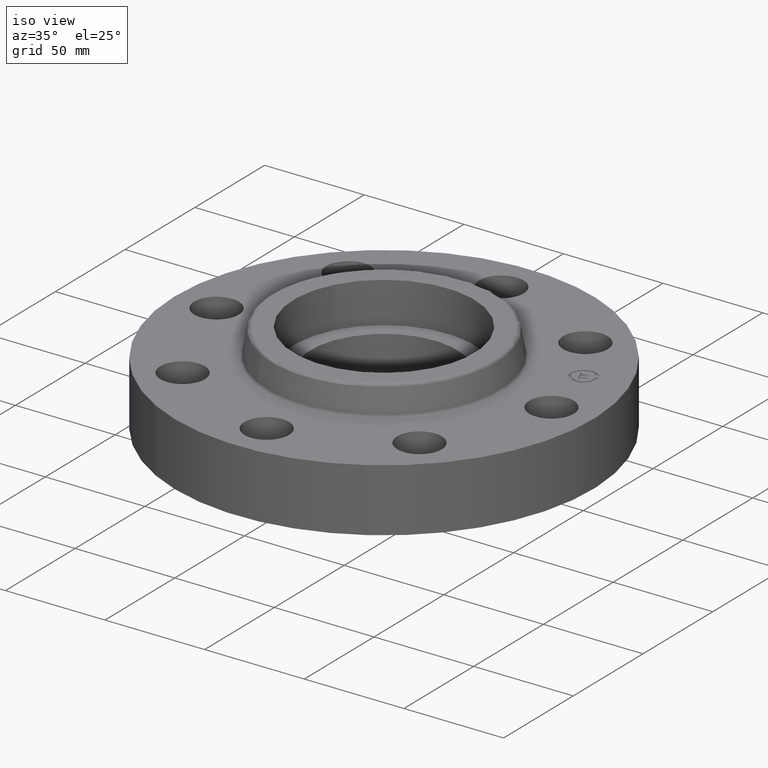
[diagram: clean part render]
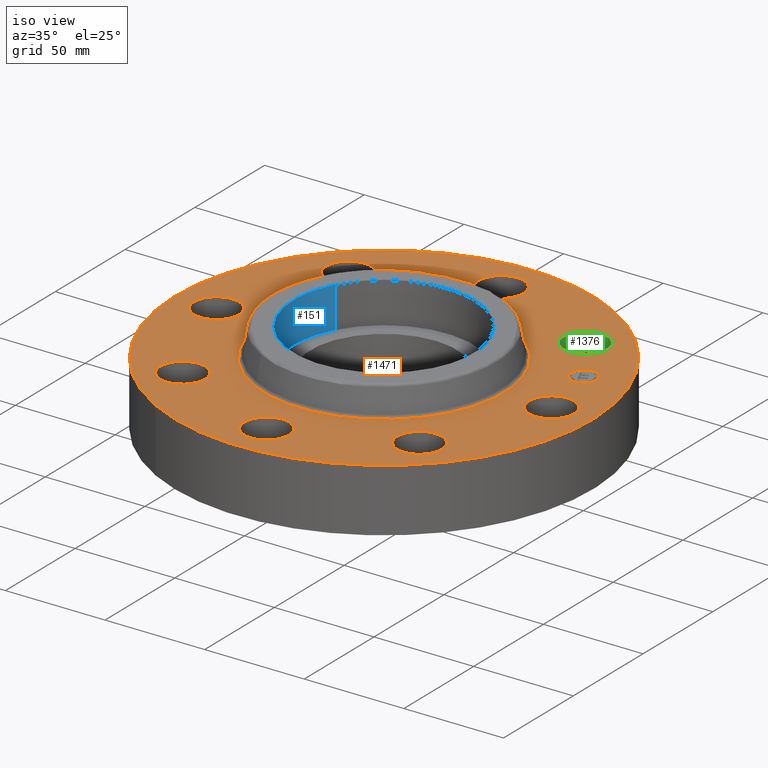
[diagram: same view with three faces highlighted in distinct colors, each labeled with its STEP entity id]
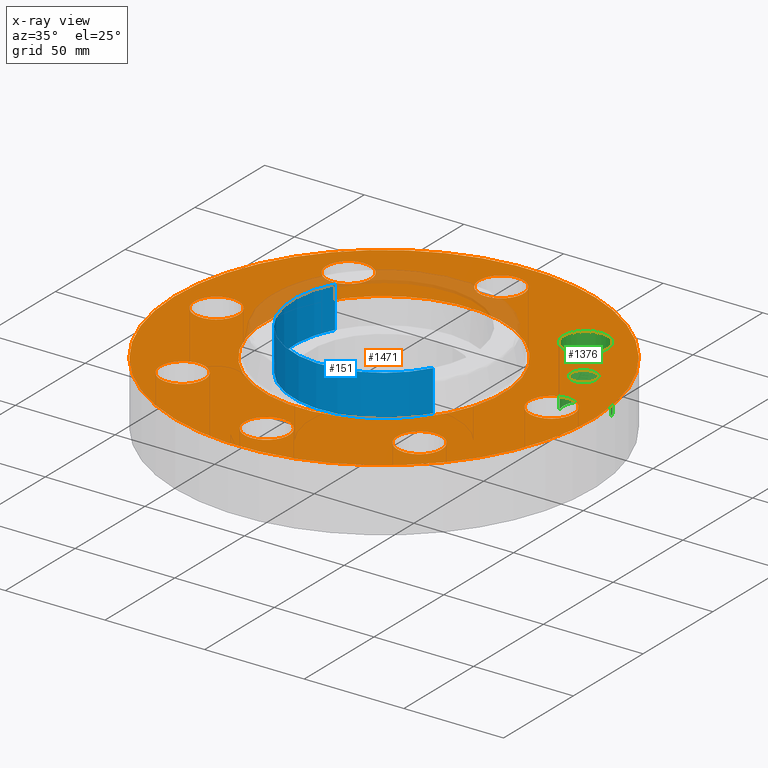
[diagram: x-ray of the same camera — body ghosted, the three highlighted faces saturated]
A machine part, iso view with three faces highlighted in distinct colors.
The next image is the same camera in x-ray (body ghosted, the three faces saturated) — at least one of them is partly hidden behind the body in this view.
Their STEP definitions:

[orange] entity #1471 — the highlighted planar face has unit normal (0, 0, -1).
#687=AXIS2_PLACEMENT_3D('Circle Axis2P3D',#685,#686,$) ;
#725=AXIS2_PLACEMENT_3D('Circle Axis2P3D',#723,#724,$) ;
#799=AXIS2_PLACEMENT_3D('Circle Axis2P3D',#797,#798,$) ;
#873=AXIS2_PLACEMENT_3D('Circle Axis2P3D',#871,#872,$) ;
#947=AXIS2_PLACEMENT_3D('Circle Axis2P3D',#945,#946,$) ;
#985=AXIS2_PLACEMENT_3D('Circle Axis2P3D',#983,#984,$) ;
#1095=AXIS2_PLACEMENT_3D('Circle Axis2P3D',#1093,#1094,$) ;
#1133=AXIS2_PLACEMENT_3D('Circle Axis2P3D',#1131,#1132,$) ;
#1243=AXIS2_PLACEMENT_3D('Circle Axis2P3D',#1241,#1242,$) ;
#1281=AXIS2_PLACEMENT_3D('Circle Axis2P3D',#1279,#1280,$) ;
#1391=AXIS2_PLACEMENT_3D('Circle Axis2P3D',#1389,#1390,$) ;
#1411=AXIS2_PLACEMENT_3D('Plane Axis2P3D',#1408,#1409,#1410) ;
#1455=AXIS2_PLACEMENT_3D('Circle Axis2P3D',#1453,#1454,$) ;
#1464=AXIS2_PLACEMENT_3D('Circle Axis2P3D',#1462,#1463,$) ;
#685=CARTESIAN_POINT('Axis2P3D Location',(0.,0.,1.25000000001)) ;
#689=CARTESIAN_POINT('Vertex',(1.13161014174,2.07139847022,1.25000000001)) ;
#691=CARTESIAN_POINT('Vertex',(-1.13161014174,-2.07139847022,1.25000000001)) ;
#723=CARTESIAN_POINT('Axis2P3D Location',(0.,0.,1.25000000001)) ;
#751=CARTESIAN_POINT('Vertex',(-1.97763034675,-3.62002806781,1.25000000004)) ;
#755=CARTESIAN_POINT('Control Point',(-1.97763034675,-3.62002806781,1.25000000001)) ;
#756=CARTESIAN_POINT('Control Point',(-2.54626302594,-3.30938261937,1.25000000001)) ;
#757=CARTESIAN_POINT('Control Point',(-3.05390061395,-2.88708640546,1.25000000001)) ;
#758=CARTESIAN_POINT('Control Point',(-3.47121412711,-2.36901864835,1.25000000001)) ;
#759=CARTESIAN_POINT('Control Point',(-4.08022127968,-1.19716953677,1.25000000002)) ;
#760=CARTESIAN_POINT('Control Point',(-4.20091220836,0.117955458021,1.25000000002)) ;
#761=CARTESIAN_POINT('Control Point',(-4.12966819923,0.779369897221,1.25000000002)) ;
#762=CARTESIAN_POINT('Control Point',(-3.73167883328,2.03862543792,1.25000000003)) ;
#763=CARTESIAN_POINT('Control Point',(-2.88708640546,3.05390061395,1.25000000003)) ;
#764=CARTESIAN_POINT('Control Point',(-2.36901864835,3.47121412711,1.25000000003)) ;
#765=CARTESIAN_POINT('Control Point',(-1.19716953677,4.08022127968,1.25000000003)) ;
#766=CARTESIAN_POINT('Control Point',(0.117955458021,4.20091220836,1.25000000004)) ;
#767=CARTESIAN_POINT('Control Point',(0.77936989722,4.12966819923,1.25000000004)) ;
#768=CARTESIAN_POINT('Control Point',(1.40899766757,3.93067351626,1.25000000004)) ;
#769=CARTESIAN_POINT('Control Point',(1.97763034675,3.62002806781,1.25000000004)) ;
#770=CARTESIAN_POINT('Vertex',(1.97763034678,3.62002806783,1.25000000001)) ;
#797=CARTESIAN_POINT('Axis2P3D Location',(0.,0.,1.25000000004)) ;
#825=CARTESIAN_POINT('Vertex',(3.69613632724,-0.210947236984,1.24999999999)) ;
#832=CARTESIAN_POINT('Vertex',(2.92386367278,0.210947236987,1.24999999999)) ;
#836=CARTESIAN_POINT('Control Point',(3.69613632724,-0.210947236987,1.24999999999)) ;
#837=CARTESIAN_POINT('Control Point',(3.66300081274,-0.271601389433,1.24999999999)) ;
#838=CARTESIAN_POINT('Control Point',(3.61795588326,-0.325749398821,1.24999999999)) ;
#839=CARTESIAN_POINT('Control Point',(3.5626953225,-0.370262840224,1.24999999999)) ;
#840=CARTESIAN_POINT('Control Point',(3.43769808393,-0.435223603166,1.24999999999)) ;
#841=CARTESIAN_POINT('Control Point',(3.29741808449,-0.448097302225,1.25)) ;
#842=CARTESIAN_POINT('Control Point',(3.22686721097,-0.440497941251,1.25)) ;
#843=CARTESIAN_POINT('Control Point',(3.09254661997,-0.398045742217,1.25)) ;
#844=CARTESIAN_POINT('Control Point',(2.98425060119,-0.307955883249,1.25)) ;
#845=CARTESIAN_POINT('Control Point',(2.93973715979,-0.252695322491,1.25)) ;
#846=CARTESIAN_POINT('Control Point',(2.87477639684,-0.127698083922,1.25)) ;
#847=CARTESIAN_POINT('Control Point',(2.86190269778,0.0125819155223,1.25000000001)) ;
#848=CARTESIAN_POINT('Control Point',(2.86950205876,0.0831327890369,1.25000000001)) ;
#849=CARTESIAN_POINT('Control Point',(2.89072815828,0.150293084541,1.25000000001)) ;
#850=CARTESIAN_POINT('Control Point',(2.92386367278,0.210947236987,1.25000000001)) ;
#871=CARTESIAN_POINT('Axis2P3D Location',(3.31000000001,0.,1.24999999999)) ;
#899=CARTESIAN_POINT('Vertex',(2.21664605203,-1.91832160855,1.24999999999)) ;
#906=CARTESIAN_POINT('Vertex',(2.46440083944,-2.76272528294,1.24999999999)) ;
#910=CARTESIAN_POINT('Control Point',(2.21664605204,-1.91832160854,1.24999999999)) ;
#911=CARTESIAN_POINT('Control Point',(2.28296536154,-1.89886299304,1.24999999999)) ;
#912=CARTESIAN_POINT('Control Point',(2.35310536126,-1.89242614351,1.24999999999)) ;
#913=CARTESIAN_POINT('Control Point',(2.42365623478,-1.90002550449,1.24999999999)) ;
#914=CARTESIAN_POINT('Control Point',(2.55797682578,-1.94247770352,1.24999999999)) ;
#915=CARTESIAN_POINT('Control Point',(2.66627284456,-2.03256756249,1.25)) ;
#916=CARTESIAN_POINT('Control Point',(2.71078628596,-2.08782812325,1.25)) ;
#917=CARTESIAN_POINT('Control Point',(2.77574704891,-2.21282536182,1.25)) ;
#918=CARTESIAN_POINT('Control Point',(2.78862074797,-2.35310536126,1.25)) ;
#919=CARTESIAN_POINT('Control Point',(2.78102138699,-2.42365623478,1.25)) ;
#920=CARTESIAN_POINT('Control Point',(2.73856918796,-2.55797682578,1.25)) ;
#921=CARTESIAN_POINT('Control Point',(2.64847932899,-2.66627284456,1.25000000001)) ;
#922=CARTESIAN_POINT('Control Point',(2.59321876823,-2.71078628596,1.25000000001)) ;
#923=CARTESIAN_POINT('Control Point',(2.53072014895,-2.74326666743,1.25000000001)) ;
#924=CARTESIAN_POINT('Control Point',(2.46440083944,-2.76272528294,1.25000000001)) ;
#945=CARTESIAN_POINT('Axis2P3D Location',(2.34052344574,-2.34052344574,1.24999999999)) ;
#973=CARTESIAN_POINT('Vertex',(0.210947237,-2.92386367279,1.25000000001)) ;
#980=CARTESIAN_POINT('Vertex',(-0.210947236987,-3.69613632724,1.24999999999)) ;
#983=CARTESIAN_POINT('Axis2P3D Location',(-3.56803423843E-016,-3.31000000001,1.24999999999)) ;
#1008=CARTESIAN_POINT('Control Point',(-0.210947236987,-3.69613632724,1.25000000001)) ;
#1009=CARTESIAN_POINT('Control Point',(-0.271601389433,-3.66300081274,1.25000000001)) ;
#1010=CARTESIAN_POINT('Control Point',(-0.325749398821,-3.61795588326,1.25000000001)) ;
#1011=CARTESIAN_POINT('Control Point',(-0.370262840224,-3.5626953225,1.25000000001)) ;
#1012=CARTESIAN_POINT('Control Point',(-0.435223603166,-3.43769808393,1.25)) ;
#1013=CARTESIAN_POINT('Control Point',(-0.448097302225,-3.29741808449,1.25)) ;
#1014=CARTESIAN_POINT('Control Point',(-0.440497941251,-3.22686721097,1.25)) ;
#1015=CARTESIAN_POINT('Control Point',(-0.398045742217,-3.09254661997,1.25)) ;
#1016=CARTESIAN_POINT('Control Point',(-0.307955883249,-2.98425060119,1.25)) ;
#1017=CARTESIAN_POINT('Control Point',(-0.252695322491,-2.93973715979,1.25)) ;
#1018=CARTESIAN_POINT('Control Point',(-0.127698083922,-2.87477639684,1.24999999999)) ;
#1019=CARTESIAN_POINT('Control Point',(0.0125819155223,-2.86190269778,1.24999999999)) ;
#1020=CARTESIAN_POINT('Control Point',(0.0831327890369,-2.86950205876,1.24999999999)) ;
#1021=CARTESIAN_POINT('Control Point',(0.150293084541,-2.89072815828,1.24999999999)) ;
#1022=CARTESIAN_POINT('Control Point',(0.210947236987,-2.92386367278,1.24999999999)) ;
#1047=CARTESIAN_POINT('Vertex',(-1.91832160855,-2.21664605203,1.24999999999)) ;
#1054=CARTESIAN_POINT('Vertex',(-2.76272528294,-2.46440083944,1.24999999999)) ;
#1058=CARTESIAN_POINT('Control Point',(-1.91832160854,-2.21664605204,1.24999999999)) ;
#1059=CARTESIAN_POINT('Control Point',(-1.89886299304,-2.28296536154,1.24999999999)) ;
#1060=CARTESIAN_POINT('Control Point',(-1.89242614351,-2.35310536126,1.24999999999)) ;
#1061=CARTESIAN_POINT('Control Point',(-1.90002550449,-2.42365623478,1.24999999999)) ;
#1062=CARTESIAN_POINT('Control Point',(-1.94247770352,-2.55797682578,1.24999999999)) ;
#1063=CARTESIAN_POINT('Control Point',(-2.03256756249,-2.66627284456,1.25)) ;
#1064=CARTESIAN_POINT('Control Point',(-2.08782812325,-2.71078628596,1.25)) ;
#1065=CARTESIAN_POINT('Control Point',(-2.21282536182,-2.77574704891,1.25)) ;
#1066=CARTESIAN_POINT('Control Point',(-2.35310536126,-2.78862074797,1.25)) ;
#1067=CARTESIAN_POINT('Control Point',(-2.42365623478,-2.78102138699,1.25)) ;
#1068=CARTESIAN_POINT('Control Point',(-2.55797682578,-2.73856918796,1.25)) ;
#1069=CARTESIAN_POINT('Control Point',(-2.66627284456,-2.64847932899,1.25000000001)) ;
#1070=CARTESIAN_POINT('Control Point',(-2.71078628596,-2.59321876823,1.25000000001)) ;
#1071=CARTESIAN_POINT('Control Point',(-2.74326666743,-2.53072014895,1.25000000001)) ;
#1072=CARTESIAN_POINT('Control Point',(-2.76272528294,-2.46440083944,1.25000000001)) ;
#1093=CARTESIAN_POINT('Axis2P3D Location',(-2.34052344574,-2.34052344574,1.24999999999)) ;
#1121=CARTESIAN_POINT('Vertex',(-2.92386367279,-0.210947236994,1.25000000001)) ;
#1128=CARTESIAN_POINT('Vertex',(-3.69613632724,0.210947236987,1.24999999999)) ;
#1131=CARTESIAN_POINT('Axis2P3D Location',(-3.31000000001,-4.05358090519E-016,1.24999999999)) ;
#1156=CARTESIAN_POINT('Control Point',(-3.69613632724,0.210947236987,1.25000000001)) ;
#1157=CARTESIAN_POINT('Control Point',(-3.66300081274,0.271601389433,1.25000000001)) ;
#1158=CARTESIAN_POINT('Control Point',(-3.61795588326,0.325749398821,1.25000000001)) ;
#1159=CARTESIAN_POINT('Control Point',(-3.5626953225,0.370262840224,1.25000000001)) ;
#1160=CARTESIAN_POINT('Control Point',(-3.43769808393,0.435223603166,1.25)) ;
#1161=CARTESIAN_POINT('Control Point',(-3.29741808449,0.448097302225,1.25)) ;
#1162=CARTESIAN_POINT('Control Point',(-3.22686721097,0.440497941251,1.25)) ;
#1163=CARTESIAN_POINT('Control Point',(-3.09254661997,0.398045742217,1.25)) ;
#1164=CARTESIAN_POINT('Control Point',(-2.98425060119,0.307955883249,1.25)) ;
#1165=CARTESIAN_POINT('Control Point',(-2.93973715979,0.252695322491,1.25)) ;
#1166=CARTESIAN_POINT('Control Point',(-2.87477639684,0.127698083922,1.24999999999)) ;
#1167=CARTESIAN_POINT('Control Point',(-2.86190269778,-0.0125819155223,1.24999999999)) ;
#1168=CARTESIAN_POINT('Control Point',(-2.86950205876,-0.0831327890369,1.24999999999)) ;
#1169=CARTESIAN_POINT('Control Point',(-2.89072815828,-0.150293084541,1.24999999999)) ;
#1170=CARTESIAN_POINT('Control Point',(-2.92386367278,-0.210947236987,1.24999999999)) ;
#1195=CARTESIAN_POINT('Vertex',(-2.21664605203,1.91832160855,1.24999999999)) ;
#1202=CARTESIAN_POINT('Vertex',(-2.46440083944,2.76272528294,1.24999999999)) ;
#1206=CARTESIAN_POINT('Control Point',(-2.21664605204,1.91832160854,1.24999999999)) ;
#1207=CARTESIAN_POINT('Control Point',(-2.28296536154,1.89886299304,1.24999999999)) ;
#1208=CARTESIAN_POINT('Control Point',(-2.35310536126,1.89242614351,1.24999999999)) ;
#1209=CARTESIAN_POINT('Control Point',(-2.42365623478,1.90002550449,1.24999999999)) ;
#1210=CARTESIAN_POINT('Control Point',(-2.55797682578,1.94247770352,1.24999999999)) ;
#1211=CARTESIAN_POINT('Control Point',(-2.66627284456,2.03256756249,1.25)) ;
#1212=CARTESIAN_POINT('Control Point',(-2.71078628596,2.08782812325,1.25)) ;
#1213=CARTESIAN_POINT('Control Point',(-2.77574704891,2.21282536182,1.25)) ;
#1214=CARTESIAN_POINT('Control Point',(-2.78862074797,2.35310536126,1.25)) ;
#1215=CARTESIAN_POINT('Control Point',(-2.78102138699,2.42365623478,1.25)) ;
#1216=CARTESIAN_POINT('Control Point',(-2.73856918796,2.55797682578,1.25)) ;
#1217=CARTESIAN_POINT('Control Point',(-2.64847932899,2.66627284456,1.25000000001)) ;
#1218=CARTESIAN_POINT('Control Point',(-2.59321876823,2.71078628596,1.25000000001)) ;
#1219=CARTESIAN_POINT('Control Point',(-2.53072014895,2.74326666743,1.25000000001)) ;
#1220=CARTESIAN_POINT('Control Point',(-2.46440083944,2.76272528294,1.25000000001)) ;
#1241=CARTESIAN_POINT('Axis2P3D Location',(-2.34052344574,2.34052344574,1.24999999999)) ;
#1269=CARTESIAN_POINT('Vertex',(-0.210947237,2.9238636728,1.25000000001)) ;
#1276=CARTESIAN_POINT('Vertex',(0.210947236987,3.69613632724,1.24999999999)) ;
#1279=CARTESIAN_POINT('Axis2P3D Location',(-6.08037135779E-016,3.31000000001,1.24999999999)) ;
#1304=CARTESIAN_POINT('Control Point',(0.210947236987,3.69613632724,1.25000000001)) ;
#1305=CARTESIAN_POINT('Control Point',(0.271601389433,3.66300081274,1.25000000001)) ;
#1306=CARTESIAN_POINT('Control Point',(0.325749398821,3.61795588326,1.25000000001)) ;
#1307=CARTESIAN_POINT('Control Point',(0.370262840224,3.5626953225,1.25000000001)) ;
#1308=CARTESIAN_POINT('Control Point',(0.435223603166,3.43769808393,1.25)) ;
#1309=CARTESIAN_POINT('Control Point',(0.448097302225,3.29741808449,1.25)) ;
#1310=CARTESIAN_POINT('Control Point',(0.440497941251,3.22686721097,1.25)) ;
#1311=CARTESIAN_POINT('Control Point',(0.398045742217,3.09254661997,1.25)) ;
#1312=CARTESIAN_POINT('Control Point',(0.307955883249,2.98425060119,1.25)) ;
#1313=CARTESIAN_POINT('Control Point',(0.252695322491,2.93973715979,1.25)) ;
#1314=CARTESIAN_POINT('Control Point',(0.127698083922,2.87477639684,1.24999999999)) ;
#1315=CARTESIAN_POINT('Control Point',(-0.0125819155223,2.86190269778,1.24999999999)) ;
#1316=CARTESIAN_POINT('Control Point',(-0.0831327890369,2.86950205876,1.24999999999)) ;
#1317=CARTESIAN_POINT('Control Point',(-0.150293084541,2.89072815828,1.24999999999)) ;
#1318=CARTESIAN_POINT('Control Point',(-0.210947236987,2.92386367278,1.24999999999)) ;
#1343=CARTESIAN_POINT('Vertex',(1.91832160855,2.21664605203,1.24999999999)) ;
#1350=CARTESIAN_POINT('Vertex',(2.76272528294,2.46440083944,1.24999999999)) ;
#1354=CARTESIAN_POINT('Control Point',(1.91832160854,2.21664605204,1.24999999999)) ;
#1355=CARTESIAN_POINT('Control Point',(1.89886299304,2.28296536154,1.24999999999)) ;
#1356=CARTESIAN_POINT('Control Point',(1.89242614351,2.35310536126,1.24999999999)) ;
#1357=CARTESIAN_POINT('Control Point',(1.90002550449,2.42365623478,1.24999999999)) ;
#1358=CARTESIAN_POINT('Control Point',(1.94247770352,2.55797682578,1.24999999999)) ;
#1359=CARTESIAN_POINT('Control Point',(2.03256756249,2.66627284456,1.25)) ;
#1360=CARTESIAN_POINT('Control Point',(2.08782812325,2.71078628596,1.25)) ;
#1361=CARTESIAN_POINT('Control Point',(2.21282536182,2.77574704891,1.25)) ;
#1362=CARTESIAN_POINT('Control Point',(2.35310536126,2.78862074797,1.25)) ;
#1363=CARTESIAN_POINT('Control Point',(2.42365623478,2.78102138699,1.25)) ;
#1364=CARTESIAN_POINT('Control Point',(2.55797682578,2.73856918796,1.25)) ;
#1365=CARTESIAN_POINT('Control Point',(2.66627284456,2.64847932899,1.25000000001)) ;
#1366=CARTESIAN_POINT('Control Point',(2.71078628596,2.59321876823,1.25000000001)) ;
#1367=CARTESIAN_POINT('Control Point',(2.74326666743,2.53072014895,1.25000000001)) ;
#1368=CARTESIAN_POINT('Control Point',(2.76272528294,2.46440083944,1.25000000001)) ;
#1389=CARTESIAN_POINT('Axis2P3D Location',(2.34052344574,2.34052344574,1.24999999999)) ;
#1408=CARTESIAN_POINT('Axis2P3D Location',(0.,4.12500000002,1.25000000001)) ;
#1453=CARTESIAN_POINT('Axis2P3D Location',(3.05804125264,1.26668216115,1.25000000001)) ;
#1457=CARTESIAN_POINT('Vertex',(2.96332710313,1.49534234543,1.25000000001)) ;
#1459=CARTESIAN_POINT('Vertex',(3.15275540216,1.03802197687,1.25000000001)) ;
#1462=CARTESIAN_POINT('Axis2P3D Location',(3.05804125258,1.26668216112,1.25000000001)) ;
#686=DIRECTION('Axis2P3D Direction',(-0.,0.,-0.0393700787402)) ;
#724=DIRECTION('Axis2P3D Direction',(-0.,0.,-0.0393700787402)) ;
#798=DIRECTION('Axis2P3D Direction',(0.,0.,-0.0393700787402)) ;
#872=DIRECTION('Axis2P3D Direction',(0.,-0.,-0.0393700787402)) ;
#946=DIRECTION('Axis2P3D Direction',(0.,0.,-0.0393700787402)) ;
#984=DIRECTION('Axis2P3D Direction',(0.,0.,-0.0393700787402)) ;
#1094=DIRECTION('Axis2P3D Direction',(-0.,0.,-0.0393700787402)) ;
#1132=DIRECTION('Axis2P3D Direction',(0.,-0.,-0.0393700787402)) ;
#1242=DIRECTION('Axis2P3D Direction',(0.,0.,-0.0393700787402)) ;
#1280=DIRECTION('Axis2P3D Direction',(-0.,0.,-0.0393700787402)) ;
#1390=DIRECTION('Axis2P3D Direction',(-0.,0.,-0.0393700787402)) ;
#1409=DIRECTION('Axis2P3D Direction',(0.,0.,-0.0393700787402)) ;
#1410=DIRECTION('Axis2P3D XDirection',(0.0393700787402,0.,0.)) ;
#1454=DIRECTION('Axis2P3D Direction',(0.,0.,-0.0393700787402)) ;
#1463=DIRECTION('Axis2P3D Direction',(0.,0.,-0.0393700787402)) ;
#1414=ORIENTED_EDGE('',*,*,#801,.F.) ;
#1415=ORIENTED_EDGE('',*,*,#772,.F.) ;
#1418=ORIENTED_EDGE('',*,*,#875,.T.) ;
#1419=ORIENTED_EDGE('',*,*,#851,.T.) ;
#1422=ORIENTED_EDGE('',*,*,#727,.T.) ;
#1423=ORIENTED_EDGE('',*,*,#693,.T.) ;
#1426=ORIENTED_EDGE('',*,*,#949,.T.) ;
#1427=ORIENTED_EDGE('',*,*,#925,.T.) ;
#1430=ORIENTED_EDGE('',*,*,#1023,.T.) ;
#1431=ORIENTED_EDGE('',*,*,#987,.T.) ;
#1434=ORIENTED_EDGE('',*,*,#1097,.T.) ;
#1435=ORIENTED_EDGE('',*,*,#1073,.T.) ;
#1438=ORIENTED_EDGE('',*,*,#1171,.T.) ;
#1439=ORIENTED_EDGE('',*,*,#1135,.T.) ;
#1442=ORIENTED_EDGE('',*,*,#1245,.T.) ;
#1443=ORIENTED_EDGE('',*,*,#1221,.T.) ;
#1446=ORIENTED_EDGE('',*,*,#1319,.T.) ;
#1447=ORIENTED_EDGE('',*,*,#1283,.T.) ;
#1450=ORIENTED_EDGE('',*,*,#1393,.T.) ;
#1451=ORIENTED_EDGE('',*,*,#1369,.T.) ;
#1468=ORIENTED_EDGE('',*,*,#1461,.T.) ;
#1469=ORIENTED_EDGE('',*,*,#1466,.T.) ;
#1420=FACE_BOUND('',#1417,.T.) ;
#1424=FACE_BOUND('',#1421,.T.) ;
#1428=FACE_BOUND('',#1425,.T.) ;
#1432=FACE_BOUND('',#1429,.T.) ;
#1436=FACE_BOUND('',#1433,.T.) ;
#1440=FACE_BOUND('',#1437,.T.) ;
#1444=FACE_BOUND('',#1441,.T.) ;
#1448=FACE_BOUND('',#1445,.T.) ;
#1452=FACE_BOUND('',#1449,.T.) ;
#1470=FACE_BOUND('',#1467,.T.) ;
#1471=ADVANCED_FACE('PartBody',(#1416,#1420,#1424,#1428,#1432,#1436,#1440,#1444,#1448,#1452,#1470),#1412,.F.) ;
#754=B_SPLINE_CURVE_WITH_KNOTS('',5,(#755,#756,#757,#758,#759,#760,#761,#762,#763,#764,#765,#766,#767,#768,#769),.UNSPECIFIED.,.F.,.U.,(6,3,3,3,6),(-164.580185141,-82.2900925704,0.,82.2900925704,164.580185141),.UNSPECIFIED.) ;
#835=B_SPLINE_CURVE_WITH_KNOTS('',5,(#836,#837,#838,#839,#840,#841,#842,#843,#844,#845,#846,#847,#848,#849,#850),.UNSPECIFIED.,.F.,.U.,(6,3,3,3,6),(-17.5552197483,-8.77760987417,0.,8.77760987417,17.5552197483),.UNSPECIFIED.) ;
#909=B_SPLINE_CURVE_WITH_KNOTS('',5,(#910,#911,#912,#913,#914,#915,#916,#917,#918,#919,#920,#921,#922,#923,#924),.UNSPECIFIED.,.F.,.U.,(6,3,3,3,6),(-17.5552197483,-8.77760987417,0.,8.77760987417,17.5552197483),.UNSPECIFIED.) ;
#1007=B_SPLINE_CURVE_WITH_KNOTS('',5,(#1008,#1009,#1010,#1011,#1012,#1013,#1014,#1015,#1016,#1017,#1018,#1019,#1020,#1021,#1022),.UNSPECIFIED.,.F.,.U.,(6,3,3,3,6),(-17.5552197483,-8.77760987417,0.,8.77760987417,17.5552197483),.UNSPECIFIED.) ;
#1057=B_SPLINE_CURVE_WITH_KNOTS('',5,(#1058,#1059,#1060,#1061,#1062,#1063,#1064,#1065,#1066,#1067,#1068,#1069,#1070,#1071,#1072),.UNSPECIFIED.,.F.,.U.,(6,3,3,3,6),(-17.5552197483,-8.77760987417,0.,8.77760987417,17.5552197483),.UNSPECIFIED.) ;
#1155=B_SPLINE_CURVE_WITH_KNOTS('',5,(#1156,#1157,#1158,#1159,#1160,#1161,#1162,#1163,#1164,#1165,#1166,#1167,#1168,#1169,#1170),.UNSPECIFIED.,.F.,.U.,(6,3,3,3,6),(-17.5552197483,-8.77760987417,0.,8.77760987417,17.5552197483),.UNSPECIFIED.) ;
#1205=B_SPLINE_CURVE_WITH_KNOTS('',5,(#1206,#1207,#1208,#1209,#1210,#1211,#1212,#1213,#1214,#1215,#1216,#1217,#1218,#1219,#1220),.UNSPECIFIED.,.F.,.U.,(6,3,3,3,6),(-17.5552197483,-8.77760987417,0.,8.77760987417,17.5552197483),.UNSPECIFIED.) ;
#1303=B_SPLINE_CURVE_WITH_KNOTS('',5,(#1304,#1305,#1306,#1307,#1308,#1309,#1310,#1311,#1312,#1313,#1314,#1315,#1316,#1317,#1318),.UNSPECIFIED.,.F.,.U.,(6,3,3,3,6),(-17.5552197483,-8.77760987417,0.,8.77760987417,17.5552197483),.UNSPECIFIED.) ;
#1353=B_SPLINE_CURVE_WITH_KNOTS('',5,(#1354,#1355,#1356,#1357,#1358,#1359,#1360,#1361,#1362,#1363,#1364,#1365,#1366,#1367,#1368),.UNSPECIFIED.,.F.,.U.,(6,3,3,3,6),(-17.5552197483,-8.77760987417,0.,8.77760987417,17.5552197483),.UNSPECIFIED.) ;
#688=CIRCLE('generated circle',#687,2.36034597788) ;
#726=CIRCLE('generated circle',#725,2.36034597788) ;
#800=CIRCLE('generated circle',#799,4.12500000002) ;
#874=CIRCLE('generated circle',#873,0.440000000002) ;
#948=CIRCLE('generated circle',#947,0.440000000002) ;
#986=CIRCLE('generated circle',#985,0.440000000002) ;
#1096=CIRCLE('generated circle',#1095,0.440000000002) ;
#1134=CIRCLE('generated circle',#1133,0.440000000002) ;
#1244=CIRCLE('generated circle',#1243,0.440000000002) ;
#1282=CIRCLE('generated circle',#1281,0.440000000002) ;
#1392=CIRCLE('generated circle',#1391,0.440000000002) ;
#1456=CIRCLE('generated circle',#1455,0.247499999989) ;
#1465=CIRCLE('generated circle',#1464,0.247499999989) ;
#693=EDGE_CURVE('',#690,#692,#688,.T.) ;
#727=EDGE_CURVE('',#692,#690,#726,.T.) ;
#772=EDGE_CURVE('',#752,#771,#754,.T.) ;
#801=EDGE_CURVE('',#771,#752,#800,.T.) ;
#851=EDGE_CURVE('',#826,#833,#835,.T.) ;
#875=EDGE_CURVE('',#833,#826,#874,.T.) ;
#925=EDGE_CURVE('',#900,#907,#909,.T.) ;
#949=EDGE_CURVE('',#907,#900,#948,.T.) ;
#987=EDGE_CURVE('',#974,#981,#986,.T.) ;
#1023=EDGE_CURVE('',#981,#974,#1007,.T.) ;
#1073=EDGE_CURVE('',#1048,#1055,#1057,.T.) ;
#1097=EDGE_CURVE('',#1055,#1048,#1096,.T.) ;
#1135=EDGE_CURVE('',#1122,#1129,#1134,.T.) ;
#1171=EDGE_CURVE('',#1129,#1122,#1155,.T.) ;
#1221=EDGE_CURVE('',#1196,#1203,#1205,.T.) ;
#1245=EDGE_CURVE('',#1203,#1196,#1244,.T.) ;
#1283=EDGE_CURVE('',#1270,#1277,#1282,.T.) ;
#1319=EDGE_CURVE('',#1277,#1270,#1303,.T.) ;
#1369=EDGE_CURVE('',#1344,#1351,#1353,.T.) ;
#1393=EDGE_CURVE('',#1351,#1344,#1392,.T.) ;
#1461=EDGE_CURVE('',#1458,#1460,#1456,.T.) ;
#1466=EDGE_CURVE('',#1460,#1458,#1465,.T.) ;
#1413=EDGE_LOOP('',(#1414,#1415)) ;
#1417=EDGE_LOOP('',(#1418,#1419)) ;
#1421=EDGE_LOOP('',(#1422,#1423)) ;
#1425=EDGE_LOOP('',(#1426,#1427)) ;
#1429=EDGE_LOOP('',(#1430,#1431)) ;
#1433=EDGE_LOOP('',(#1434,#1435)) ;
#1437=EDGE_LOOP('',(#1438,#1439)) ;
#1441=EDGE_LOOP('',(#1442,#1443)) ;
#1445=EDGE_LOOP('',(#1446,#1447)) ;
#1449=EDGE_LOOP('',(#1450,#1451)) ;
#1467=EDGE_LOOP('',(#1468,#1469)) ;
#1416=FACE_OUTER_BOUND('',#1413,.T.) ;
#1412=PLANE('',#1411) ;
#690=VERTEX_POINT('',#689) ;
#692=VERTEX_POINT('',#691) ;
#752=VERTEX_POINT('',#751) ;
#771=VERTEX_POINT('',#770) ;
#826=VERTEX_POINT('',#825) ;
#833=VERTEX_POINT('',#832) ;
#900=VERTEX_POINT('',#899) ;
#907=VERTEX_POINT('',#906) ;
#974=VERTEX_POINT('',#973) ;
#981=VERTEX_POINT('',#980) ;
#1048=VERTEX_POINT('',#1047) ;
#1055=VERTEX_POINT('',#1054) ;
#1122=VERTEX_POINT('',#1121) ;
#1129=VERTEX_POINT('',#1128) ;
#1196=VERTEX_POINT('',#1195) ;
#1203=VERTEX_POINT('',#1202) ;
#1270=VERTEX_POINT('',#1269) ;
#1277=VERTEX_POINT('',#1276) ;
#1344=VERTEX_POINT('',#1343) ;
#1351=VERTEX_POINT('',#1350) ;
#1458=VERTEX_POINT('',#1457) ;
#1460=VERTEX_POINT('',#1459) ;

[blue] entity #151 — the highlighted cylindrical surface (partial cylindrical patch) has radius 45.339 mm, axis along (0, 0, -1).
#51=AXIS2_PLACEMENT_3D('Circle Axis2P3D',#49,#50,$) ;
#138=AXIS2_PLACEMENT_3D('Cylinder Axis2P3D',#135,#136,#137) ;
#142=AXIS2_PLACEMENT_3D('Circle Axis2P3D',#140,#141,$) ;
#44=CARTESIAN_POINT('Vertex',(-1.566484873,0.855774586419,1.)) ;
#46=CARTESIAN_POINT('Vertex',(1.566484873,-0.855774586419,1.)) ;
#49=CARTESIAN_POINT('Axis2P3D Location',(-6.99353086374E-017,1.22386790116E-015,1.)) ;
#106=CARTESIAN_POINT('Vertex',(-1.566484873,0.855774586386,1.81000000001)) ;
#108=CARTESIAN_POINT('Vertex',(1.566484873,-0.855774586378,1.81000000001)) ;
#111=CARTESIAN_POINT('Line Origine',(-1.56648487298,0.855774586414,1.40500000001)) ;
#116=CARTESIAN_POINT('Line Origine',(1.56648487298,-0.855774586414,1.40500000001)) ;
#135=CARTESIAN_POINT('Axis2P3D Location',(1.39870617276E-016,3.84644197508E-016,1.80606299213)) ;
#140=CARTESIAN_POINT('Axis2P3D Location',(1.39870617276E-016,3.84644197508E-016,1.80999999999)) ;
#50=DIRECTION('Axis2P3D Direction',(0.,0.,-0.0393700787402)) ;
#112=DIRECTION('Vector Direction',(0.,0.,-0.0393700787402)) ;
#117=DIRECTION('Vector Direction',(0.,0.,-0.0393700787402)) ;
#136=DIRECTION('Axis2P3D Direction',(0.,0.,-0.0393700787402)) ;
#137=DIRECTION('Axis2P3D XDirection',(0.0345504945626,-0.0188750212049,0.)) ;
#141=DIRECTION('Axis2P3D Direction',(0.,0.,-0.0393700787402)) ;
#113=VECTOR('Line Direction',#112,0.0393700787402) ;
#118=VECTOR('Line Direction',#117,0.0393700787402) ;
#146=ORIENTED_EDGE('',*,*,#144,.F.) ;
#147=ORIENTED_EDGE('',*,*,#120,.F.) ;
#148=ORIENTED_EDGE('',*,*,#53,.T.) ;
#149=ORIENTED_EDGE('',*,*,#115,.T.) ;
#151=ADVANCED_FACE('PartBody',(#150),#139,.F.) ;
#52=CIRCLE('generated circle',#51,1.78500000003) ;
#143=CIRCLE('generated circle',#142,1.78500000001) ;
#139=CYLINDRICAL_SURFACE('generated cylinder',#138,1.78500000001) ;
#53=EDGE_CURVE('',#47,#45,#52,.T.) ;
#115=EDGE_CURVE('',#45,#107,#114,.F.) ;
#120=EDGE_CURVE('',#47,#109,#119,.F.) ;
#144=EDGE_CURVE('',#109,#107,#143,.T.) ;
#145=EDGE_LOOP('',(#146,#147,#148,#149)) ;
#150=FACE_OUTER_BOUND('',#145,.T.) ;
#114=LINE('Line',#111,#113) ;
#119=LINE('Line',#116,#118) ;
#45=VERTEX_POINT('',#44) ;
#47=VERTEX_POINT('',#46) ;
#107=VERTEX_POINT('',#106) ;
#109=VERTEX_POINT('',#108) ;

[green] entity #1376 — the highlighted cylindrical surface (edge-blend (fillet) strip) has radius 11.176 mm, axis along (-0, 0, -1).
#656=AXIS2_PLACEMENT_3D('Circle Axis2P3D',#654,#655,$) ;
#1337=AXIS2_PLACEMENT_3D('Cylinder Axis2P3D',#1334,#1335,#1336) ;
#654=CARTESIAN_POINT('Axis2P3D Location',(2.34052344572,2.34052344575,0.)) ;
#658=CARTESIAN_POINT('Vertex',(1.91832160856,2.21664605201,0.)) ;
#660=CARTESIAN_POINT('Vertex',(2.76272528292,2.46440083941,0.)) ;
#1334=CARTESIAN_POINT('Axis2P3D Location',(2.34052344574,2.34052344574,1.24606299213)) ;
#1339=CARTESIAN_POINT('Line Origine',(1.91832160854,2.21664605204,0.625)) ;
#1343=CARTESIAN_POINT('Vertex',(1.91832160855,2.21664605203,1.24999999999)) ;
#1346=CARTESIAN_POINT('Line Origine',(2.76272528294,2.46440083944,0.625)) ;
#1350=CARTESIAN_POINT('Vertex',(2.76272528294,2.46440083944,1.24999999999)) ;
#1354=CARTESIAN_POINT('Control Point',(1.91832160854,2.21664605204,1.24999999999)) ;
#1355=CARTESIAN_POINT('Control Point',(1.89886299304,2.28296536154,1.24999999999)) ;
#1356=CARTESIAN_POINT('Control Point',(1.89242614351,2.35310536126,1.24999999999)) ;
#1357=CARTESIAN_POINT('Control Point',(1.90002550449,2.42365623478,1.24999999999)) ;
#1358=CARTESIAN_POINT('Control Point',(1.94247770352,2.55797682578,1.24999999999)) ;
#1359=CARTESIAN_POINT('Control Point',(2.03256756249,2.66627284456,1.25)) ;
#1360=CARTESIAN_POINT('Control Point',(2.08782812325,2.71078628596,1.25)) ;
#1361=CARTESIAN_POINT('Control Point',(2.21282536182,2.77574704891,1.25)) ;
#1362=CARTESIAN_POINT('Control Point',(2.35310536126,2.78862074797,1.25)) ;
#1363=CARTESIAN_POINT('Control Point',(2.42365623478,2.78102138699,1.25)) ;
#1364=CARTESIAN_POINT('Control Point',(2.55797682578,2.73856918796,1.25)) ;
#1365=CARTESIAN_POINT('Control Point',(2.66627284456,2.64847932899,1.25000000001)) ;
#1366=CARTESIAN_POINT('Control Point',(2.71078628596,2.59321876823,1.25000000001)) ;
#1367=CARTESIAN_POINT('Control Point',(2.74326666743,2.53072014895,1.25000000001)) ;
#1368=CARTESIAN_POINT('Control Point',(2.76272528294,2.46440083944,1.25000000001)) ;
#655=DIRECTION('Axis2P3D Direction',(0.,0.,-0.0393700787402)) ;
#1335=DIRECTION('Axis2P3D Direction',(-0.,0.,-0.0393700787402)) ;
#1336=DIRECTION('Axis2P3D XDirection',(-0.0377775444876,-0.0110842335096,0.)) ;
#1340=DIRECTION('Vector Direction',(0.,0.,-0.0393700787402)) ;
#1347=DIRECTION('Vector Direction',(0.,0.,-0.0393700787402)) ;
#1341=VECTOR('Line Direction',#1340,0.0393700787402) ;
#1348=VECTOR('Line Direction',#1347,0.0393700787402) ;
#1371=ORIENTED_EDGE('',*,*,#1345,.F.) ;
#1372=ORIENTED_EDGE('',*,*,#662,.T.) ;
#1373=ORIENTED_EDGE('',*,*,#1352,.T.) ;
#1374=ORIENTED_EDGE('',*,*,#1369,.F.) ;
#1376=ADVANCED_FACE('PartBody',(#1375),#1338,.F.) ;
#1353=B_SPLINE_CURVE_WITH_KNOTS('',5,(#1354,#1355,#1356,#1357,#1358,#1359,#1360,#1361,#1362,#1363,#1364,#1365,#1366,#1367,#1368),.UNSPECIFIED.,.F.,.U.,(6,3,3,3,6),(-17.5552197483,-8.77760987417,0.,8.77760987417,17.5552197483),.UNSPECIFIED.) ;
#657=CIRCLE('generated circle',#656,0.439999999984) ;
#1338=CYLINDRICAL_SURFACE('generated cylinder',#1337,0.440000000002) ;
#662=EDGE_CURVE('',#659,#661,#657,.T.) ;
#1345=EDGE_CURVE('',#659,#1344,#1342,.F.) ;
#1352=EDGE_CURVE('',#661,#1351,#1349,.F.) ;
#1369=EDGE_CURVE('',#1344,#1351,#1353,.T.) ;
#1370=EDGE_LOOP('',(#1371,#1372,#1373,#1374)) ;
#1375=FACE_OUTER_BOUND('',#1370,.T.) ;
#1342=LINE('Line',#1339,#1341) ;
#1349=LINE('Line',#1346,#1348) ;
#659=VERTEX_POINT('',#658) ;
#661=VERTEX_POINT('',#660) ;
#1344=VERTEX_POINT('',#1343) ;
#1351=VERTEX_POINT('',#1350) ;